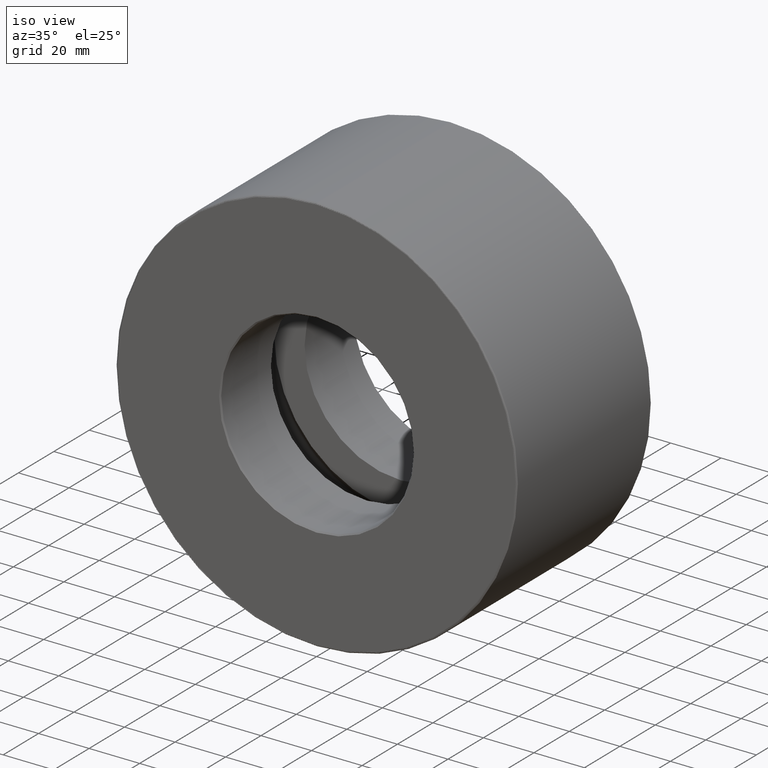
[diagram: clean part render]
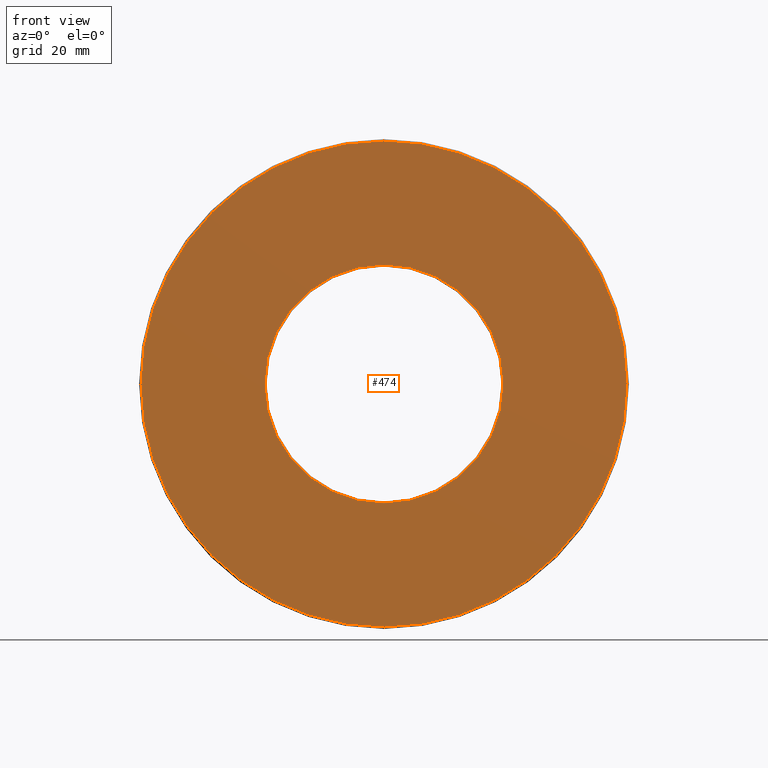
[diagram: tour spotlight — one face highlighted and labeled with its STEP entity id]
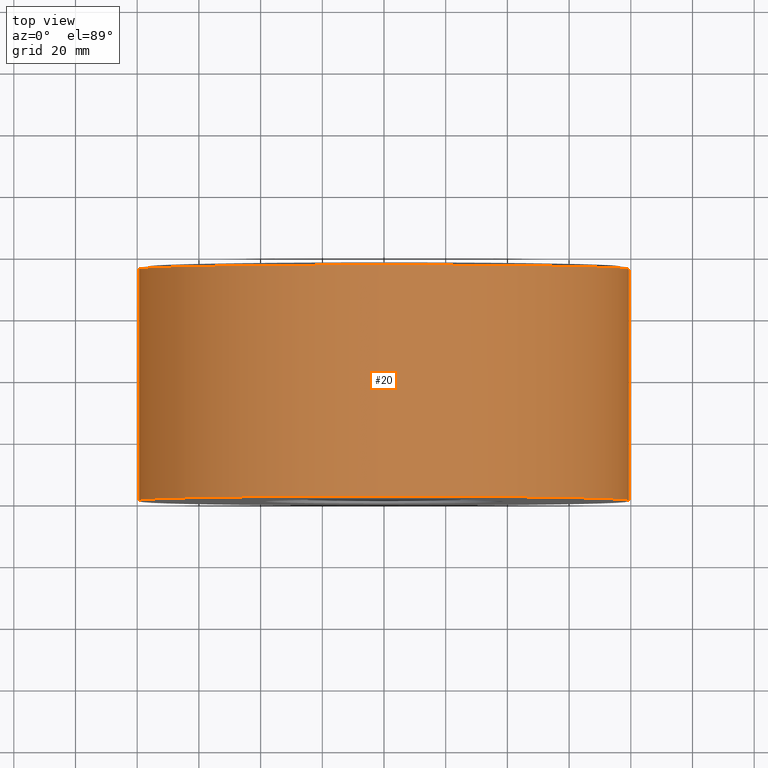
[diagram: tour spotlight — one face highlighted and labeled with its STEP entity id]
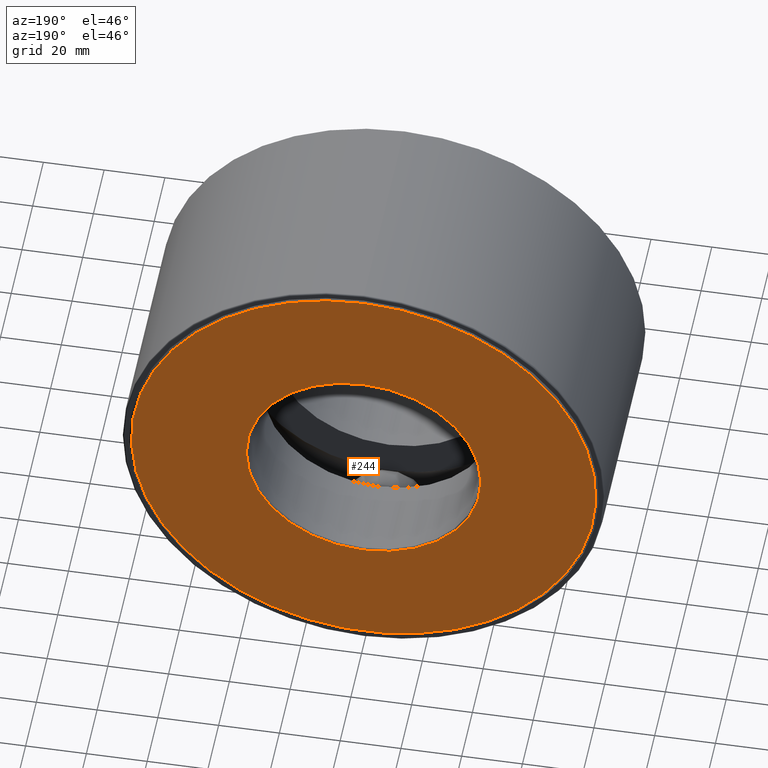
[diagram: tour spotlight — one face highlighted and labeled with its STEP entity id]
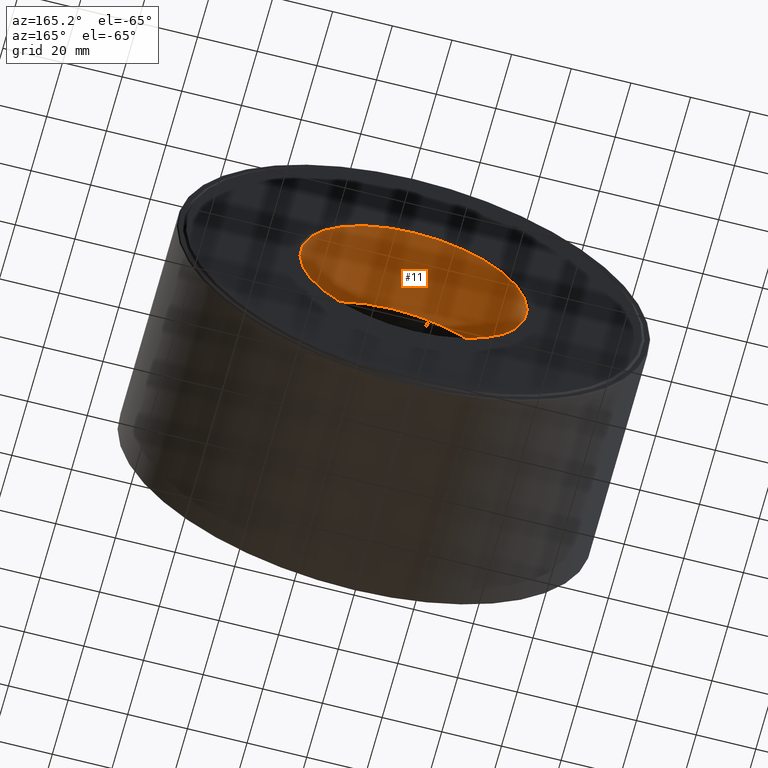
[diagram: tour spotlight — one face highlighted and labeled with its STEP entity id]
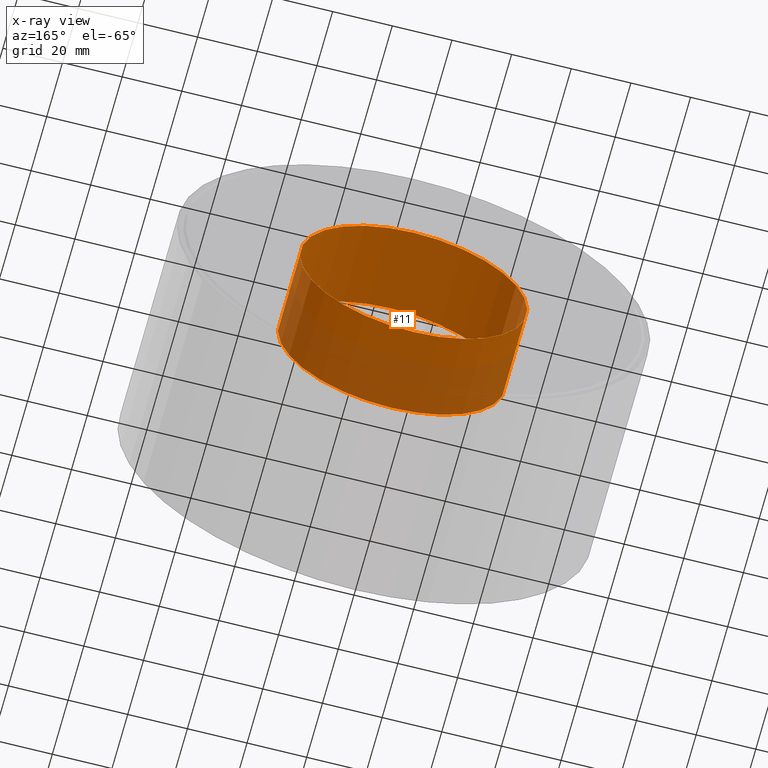
[diagram: x-ray of the same camera — body ghosted, this tour face saturated]
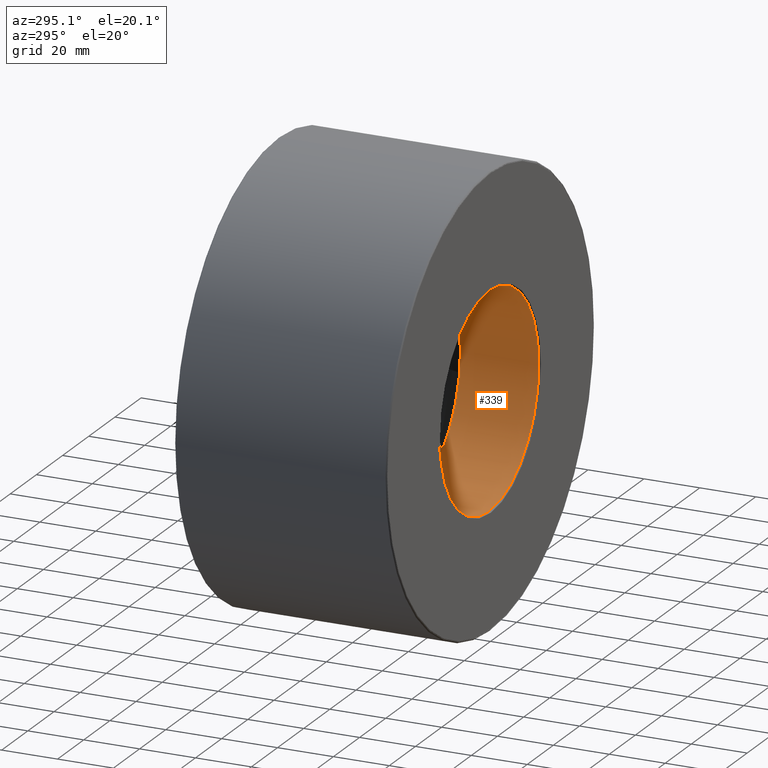
[diagram: tour spotlight — one face highlighted and labeled with its STEP entity id]
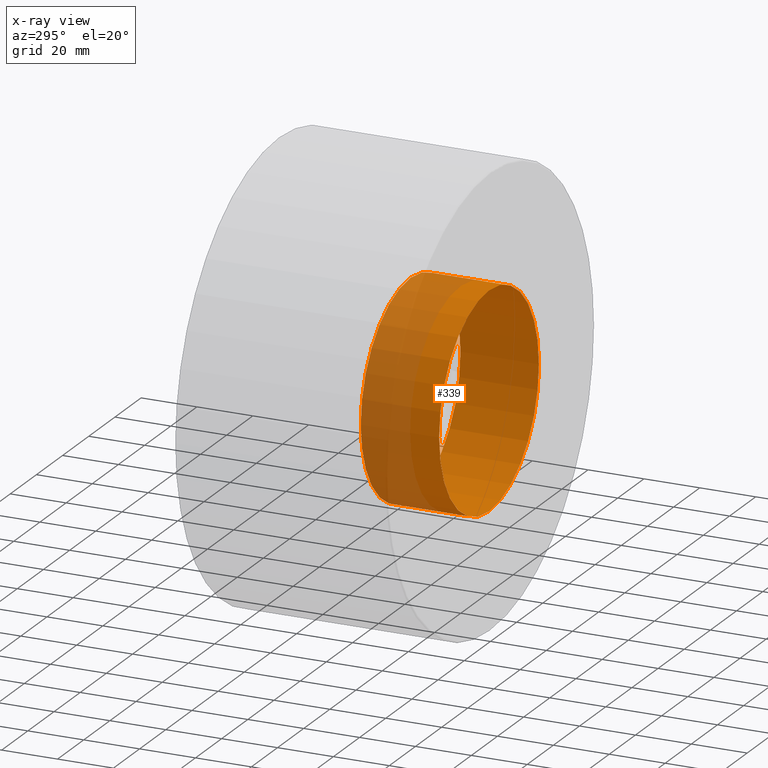
[diagram: x-ray of the same camera — body ghosted, this tour face saturated]
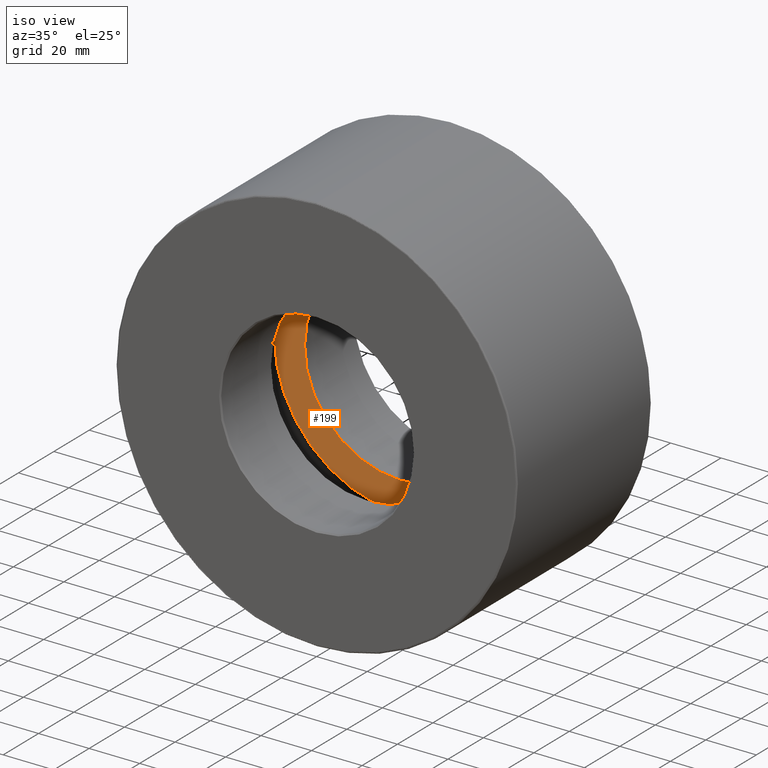
[diagram: tour spotlight — one face highlighted and labeled with its STEP entity id]
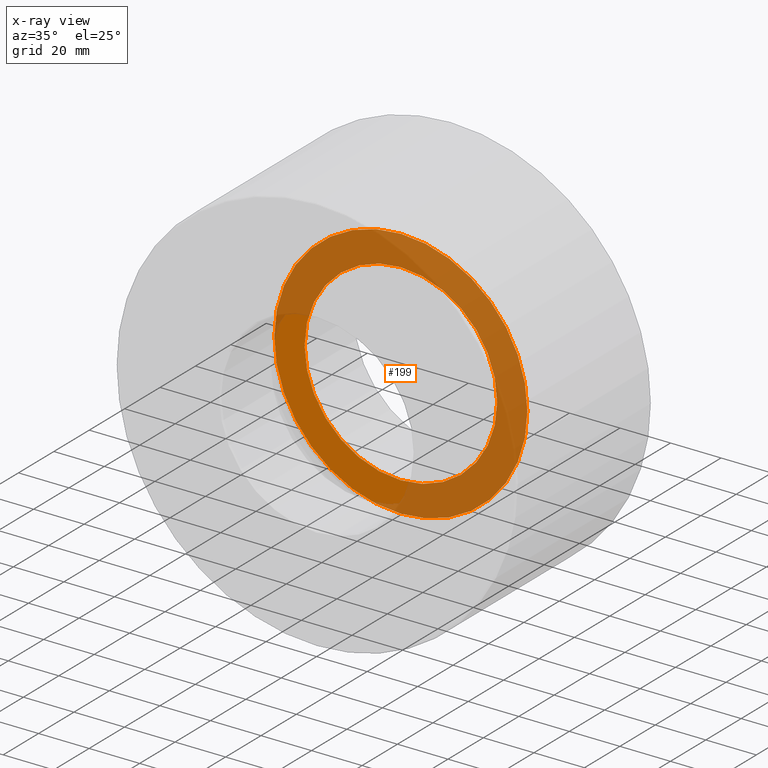
[diagram: x-ray of the same camera — body ghosted, this tour face saturated]
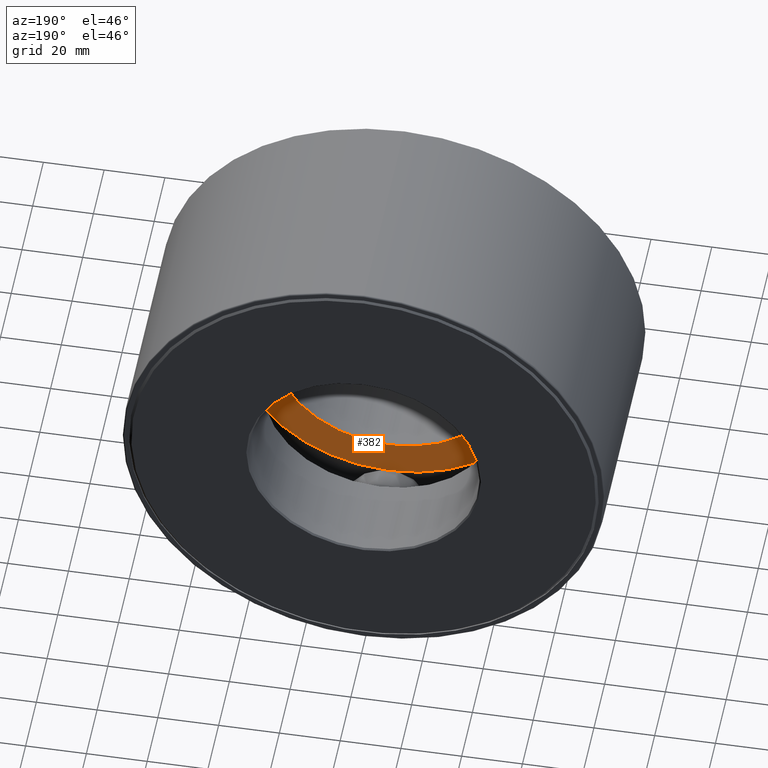
[diagram: tour spotlight — one face highlighted and labeled with its STEP entity id]
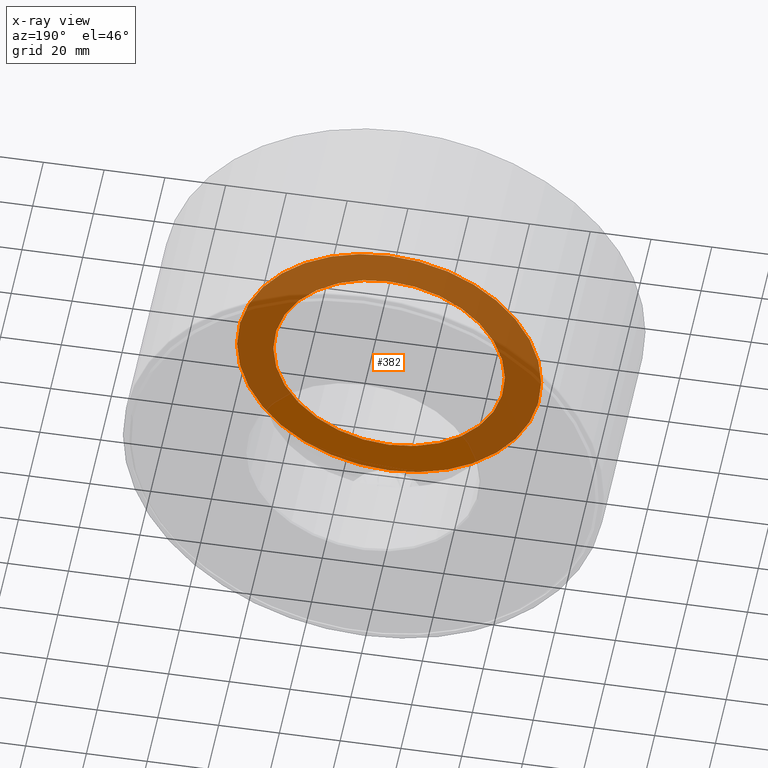
[diagram: x-ray of the same camera — body ghosted, this tour face saturated]
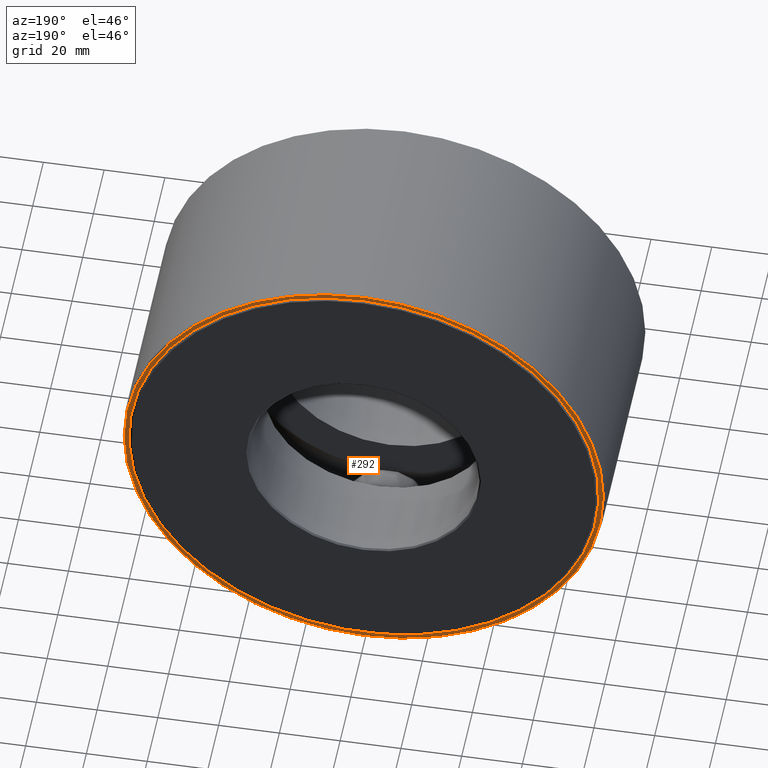
[diagram: tour spotlight — one face highlighted and labeled with its STEP entity id]
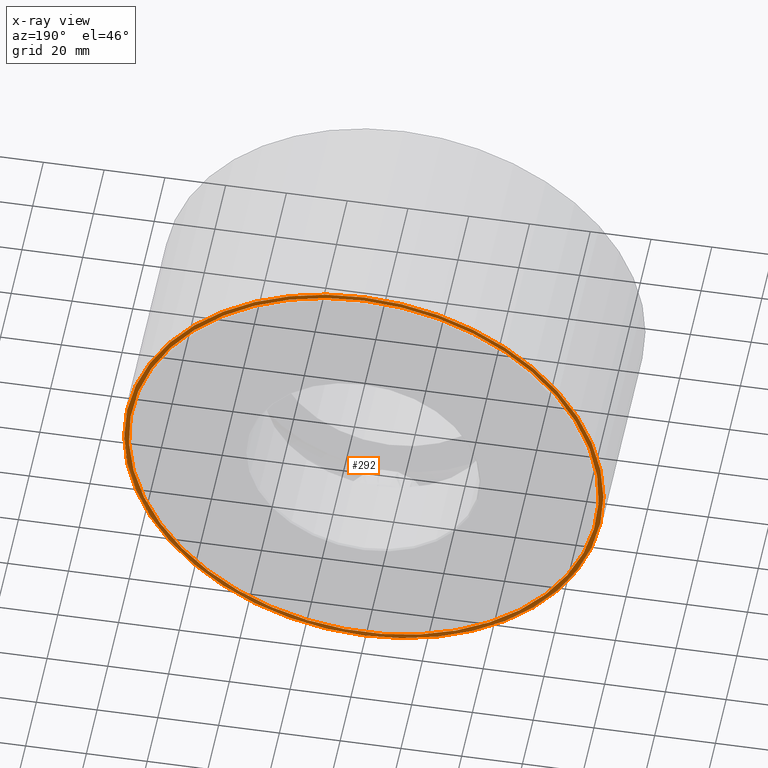
[diagram: x-ray of the same camera — body ghosted, this tour face saturated]
A machine part: a face-by-face anatomy tour. The part has 28 B-rep faces; the first image is the clean iso view, then the 8 largest visible faces are spotlighted one at a time (largest first), each with its STEP entity span.

Face 1 — front view, entity #474. In plain terms, the highlighted planar face has unit normal (-0, 1, 0).
Definition (entity closure, byte-faithful):
#31 = CIRCLE ( 'NONE', #390, 1.520000000000000200 ) ;
#33 = DIRECTION ( 'NONE',  ( -0.0000000000000000000, 1.000000000000000000, -0.0000000000000000000 ) ) ;
#38 = DIRECTION ( 'NONE',  ( 0.0000000000000000000, 0.0000000000000000000, 1.000000000000000000 ) ) ;
#84 = DIRECTION ( 'NONE',  ( -0.0000000000000000000, 1.000000000000000000, 0.0000000000000000000 ) ) ;
#117 = CIRCLE ( 'NONE', #459, 3.100000000000000100 ) ;
#149 = VERTEX_POINT ( 'NONE', #316 ) ;
#151 = EDGE_LOOP ( 'NONE', ( #349 ) ) ;
#163 = DIRECTION ( 'NONE',  ( 0.0000000000000000000, 0.0000000000000000000, 1.000000000000000000 ) ) ;
#228 = FACE_OUTER_BOUND ( 'NONE', #151, .T. ) ;
#235 = ORIENTED_EDGE ( 'NONE', *, *, #363, .T. ) ;
#260 = FACE_BOUND ( 'NONE', #329, .T. ) ;
#264 = PLANE ( 'NONE',  #573 ) ;
#302 = CARTESIAN_POINT ( 'NONE',  ( 0.0000000000000000000, 0.0000000000000000000, 0.0000000000000000000 ) ) ;
#307 = CARTESIAN_POINT ( 'NONE',  ( 0.0000000000000000000, -2.433052119357234300E-016, 0.0000000000000000000 ) ) ;
#316 = CARTESIAN_POINT ( 'NONE',  ( 0.0000000000000000000, 0.0000000000000000000, 1.520000000000000200 ) ) ;
#329 = EDGE_LOOP ( 'NONE', ( #235 ) ) ;
#349 = ORIENTED_EDGE ( 'NONE', *, *, #432, .F. ) ;
#350 = DIRECTION ( 'NONE',  ( 0.0000000000000000000, 0.0000000000000000000, 1.000000000000000000 ) ) ;
#363 = EDGE_CURVE ( 'NONE', #149, #149, #31, .T. ) ;
#390 = AXIS2_PLACEMENT_3D ( 'NONE', #302, #33, #350 ) ;
#432 = EDGE_CURVE ( 'NONE', #605, #605, #117, .T. ) ;
#459 = AXIS2_PLACEMENT_3D ( 'NONE', #307, #601, #38 ) ;
#462 = CARTESIAN_POINT ( 'NONE',  ( 0.0000000000000000000, -2.433052119357234300E-016, 3.100000000000000100 ) ) ;
#474 = ADVANCED_FACE ( 'NONE', ( #228, #260 ), #264, .F. ) ;
#502 = CARTESIAN_POINT ( 'NONE',  ( -3.604393837355100200E-032, -1.216526059678617200E-016, 0.0000000000000000000 ) ) ;
#573 = AXIS2_PLACEMENT_3D ( 'NONE', #502, #84, #163 ) ;
#601 = DIRECTION ( 'NONE',  ( -0.0000000000000000000, 1.000000000000000000, -0.0000000000000000000 ) ) ;
#605 = VERTEX_POINT ( 'NONE', #462 ) ;

Face 2 — top view, entity #20. In plain terms, the highlighted cylindrical surface (bore or boss wall) has radius 79.375 mm, axis along (-0, 1, -0).
Definition (entity closure, byte-faithful):
#12 = VERTEX_POINT ( 'NONE', #409 ) ;
#20 = ADVANCED_FACE ( 'NONE', ( #551, #588 ), #345, .T. ) ;
#45 = CIRCLE ( 'NONE', #602, 3.125000000000000000 ) ;
#55 = CARTESIAN_POINT ( 'NONE',  ( 0.0000000000000000000, 0.0000000000000000000, 0.0000000000000000000 ) ) ;
#102 = CIRCLE ( 'NONE', #498, 3.125000000000000000 ) ;
#132 = EDGE_CURVE ( 'NONE', #12, #12, #45, .T. ) ;
#145 = DIRECTION ( 'NONE',  ( 0.0000000000000000000, 0.0000000000000000000, 1.000000000000000000 ) ) ;
#153 = DIRECTION ( 'NONE',  ( 0.0000000000000000000, 0.0000000000000000000, 1.000000000000000000 ) ) ;
#213 = ORIENTED_EDGE ( 'NONE', *, *, #132, .T. ) ;
#304 = EDGE_CURVE ( 'NONE', #560, #560, #102, .T. ) ;
#308 = EDGE_LOOP ( 'NONE', ( #507 ) ) ;
#330 = DIRECTION ( 'NONE',  ( -0.0000000000000000000, 1.000000000000000000, -0.0000000000000000000 ) ) ;
#331 = AXIS2_PLACEMENT_3D ( 'NONE', #55, #330, #145 ) ;
#338 = DIRECTION ( 'NONE',  ( -0.0000000000000000000, 1.000000000000000000, -0.0000000000000000000 ) ) ;
#345 = CYLINDRICAL_SURFACE ( 'NONE', #331, 3.125000000000000000 ) ;
#392 = DIRECTION ( 'NONE',  ( -0.0000000000000000000, 1.000000000000000000, -0.0000000000000000000 ) ) ;
#409 = CARTESIAN_POINT ( 'NONE',  ( 0.0000000000000000000, 0.01499999999999997700, 3.125000000000000000 ) ) ;
#443 = CARTESIAN_POINT ( 'NONE',  ( 0.0000000000000000000, 2.965000000000000700, 0.0000000000000000000 ) ) ;
#458 = CARTESIAN_POINT ( 'NONE',  ( 0.0000000000000000000, 2.965000000000000700, 3.125000000000000000 ) ) ;
#498 = AXIS2_PLACEMENT_3D ( 'NONE', #443, #392, #542 ) ;
#507 = ORIENTED_EDGE ( 'NONE', *, *, #304, .F. ) ;
#518 = EDGE_LOOP ( 'NONE', ( #213 ) ) ;
#535 = CARTESIAN_POINT ( 'NONE',  ( 0.0000000000000000000, 0.01499999999999997700, 0.0000000000000000000 ) ) ;
#542 = DIRECTION ( 'NONE',  ( 0.0000000000000000000, 0.0000000000000000000, 1.000000000000000000 ) ) ;
#551 = FACE_OUTER_BOUND ( 'NONE', #308, .T. ) ;
#560 = VERTEX_POINT ( 'NONE', #458 ) ;
#588 = FACE_OUTER_BOUND ( 'NONE', #518, .T. ) ;
#602 = AXIS2_PLACEMENT_3D ( 'NONE', #535, #338, #153 ) ;

Face 3 — auxiliary view, entity #244. In plain terms, the highlighted planar face has unit normal (-0, 1, 0).
Definition (entity closure, byte-faithful):
#7 = VERTEX_POINT ( 'NONE', #51 ) ;
#10 = CARTESIAN_POINT ( 'NONE',  ( 0.0000000000000000000, 3.000000000000000400, 0.0000000000000000000 ) ) ;
#43 = VERTEX_POINT ( 'NONE', #171 ) ;
#51 = CARTESIAN_POINT ( 'NONE',  ( 0.0000000000000000000, 3.000000000000000400, 3.009999999999999800 ) ) ;
#80 = DIRECTION ( 'NONE',  ( 0.0000000000000000000, 0.0000000000000000000, 1.000000000000000000 ) ) ;
#90 = AXIS2_PLACEMENT_3D ( 'NONE', #10, #431, #548 ) ;
#104 = EDGE_LOOP ( 'NONE', ( #515 ) ) ;
#137 = EDGE_LOOP ( 'NONE', ( #274 ) ) ;
#171 = CARTESIAN_POINT ( 'NONE',  ( 0.0000000000000000000, 3.000000000000000400, 1.520000000000000700 ) ) ;
#209 = DIRECTION ( 'NONE',  ( -0.0000000000000000000, 1.000000000000000000, -0.0000000000000000000 ) ) ;
#211 = FACE_BOUND ( 'NONE', #104, .T. ) ;
#216 = CARTESIAN_POINT ( 'NONE',  ( 0.0000000000000000000, 3.000000000000000400, 0.0000000000000000000 ) ) ;
#243 = PLANE ( 'NONE',  #90 ) ;
#244 = ADVANCED_FACE ( 'NONE', ( #461, #211 ), #243, .T. ) ;
#274 = ORIENTED_EDGE ( 'NONE', *, *, #323, .T. ) ;
#323 = EDGE_CURVE ( 'NONE', #7, #7, #447, .T. ) ;
#377 = AXIS2_PLACEMENT_3D ( 'NONE', #216, #446, #80 ) ;
#393 = DIRECTION ( 'NONE',  ( 0.0000000000000000000, 0.0000000000000000000, 1.000000000000000000 ) ) ;
#431 = DIRECTION ( 'NONE',  ( -0.0000000000000000000, 1.000000000000000000, 0.0000000000000000000 ) ) ;
#444 = EDGE_CURVE ( 'NONE', #43, #43, #599, .T. ) ;
#446 = DIRECTION ( 'NONE',  ( -0.0000000000000000000, 1.000000000000000000, -0.0000000000000000000 ) ) ;
#447 = CIRCLE ( 'NONE', #596, 3.009999999999999800 ) ;
#461 = FACE_OUTER_BOUND ( 'NONE', #137, .T. ) ;
#515 = ORIENTED_EDGE ( 'NONE', *, *, #444, .F. ) ;
#545 = CARTESIAN_POINT ( 'NONE',  ( 0.0000000000000000000, 3.000000000000000400, 0.0000000000000000000 ) ) ;
#548 = DIRECTION ( 'NONE',  ( 0.0000000000000000000, 0.0000000000000000000, 1.000000000000000000 ) ) ;
#596 = AXIS2_PLACEMENT_3D ( 'NONE', #545, #209, #393 ) ;
#599 = CIRCLE ( 'NONE', #377, 1.520000000000000700 ) ;

Face 4 — auxiliary view, entity #11. An x-ray twin of the same camera follows (body ghosted, this face saturated) — the face is partly hidden behind the body. In plain terms, the highlighted cylindrical surface (bore or boss wall) has radius 38.1 mm, axis along (-0, 1, -0).
Definition (entity closure, byte-faithful):
#1 = DIRECTION ( 'NONE',  ( -0.0000000000000000000, 1.000000000000000000, -0.0000000000000000000 ) ) ;
#11 = ADVANCED_FACE ( 'NONE', ( #369, #408 ), #186, .F. ) ;
#32 = ORIENTED_EDGE ( 'NONE', *, *, #477, .F. ) ;
#58 = DIRECTION ( 'NONE',  ( 0.0000000000000000000, 0.0000000000000000000, 1.000000000000000000 ) ) ;
#82 = AXIS2_PLACEMENT_3D ( 'NONE', #500, #505, #218 ) ;
#131 = CARTESIAN_POINT ( 'NONE',  ( 0.0000000000000000000, 1.874999999999999800, 1.500000000000000400 ) ) ;
#134 = CIRCLE ( 'NONE', #272, 1.500000000000000400 ) ;
#186 = CYLINDRICAL_SURFACE ( 'NONE', #565, 1.500000000000000400 ) ;
#218 = DIRECTION ( 'NONE',  ( 0.0000000000000000000, 0.0000000000000000000, 1.000000000000000000 ) ) ;
#225 = CARTESIAN_POINT ( 'NONE',  ( 0.0000000000000000000, 2.979999999999999500, 1.500000000000000400 ) ) ;
#227 = CARTESIAN_POINT ( 'NONE',  ( 0.0000000000000000000, 2.979999999999999500, 0.0000000000000000000 ) ) ;
#236 = DIRECTION ( 'NONE',  ( 0.0000000000000000000, 0.0000000000000000000, 1.000000000000000000 ) ) ;
#241 = EDGE_LOOP ( 'NONE', ( #32 ) ) ;
#242 = CARTESIAN_POINT ( 'NONE',  ( 0.0000000000000000000, 0.0000000000000000000, 0.0000000000000000000 ) ) ;
#270 = VERTEX_POINT ( 'NONE', #131 ) ;
#272 = AXIS2_PLACEMENT_3D ( 'NONE', #227, #1, #236 ) ;
#341 = VERTEX_POINT ( 'NONE', #225 ) ;
#369 = FACE_OUTER_BOUND ( 'NONE', #579, .T. ) ;
#394 = CIRCLE ( 'NONE', #82, 1.500000000000000400 ) ;
#408 = FACE_OUTER_BOUND ( 'NONE', #241, .T. ) ;
#477 = EDGE_CURVE ( 'NONE', #270, #270, #394, .T. ) ;
#500 = CARTESIAN_POINT ( 'NONE',  ( 0.0000000000000000000, 1.874999999999999800, 0.0000000000000000000 ) ) ;
#505 = DIRECTION ( 'NONE',  ( -0.0000000000000000000, 1.000000000000000000, -0.0000000000000000000 ) ) ;
#514 = EDGE_CURVE ( 'NONE', #341, #341, #134, .T. ) ;
#520 = DIRECTION ( 'NONE',  ( -0.0000000000000000000, 1.000000000000000000, -0.0000000000000000000 ) ) ;
#565 = AXIS2_PLACEMENT_3D ( 'NONE', #242, #520, #58 ) ;
#579 = EDGE_LOOP ( 'NONE', ( #600 ) ) ;
#600 = ORIENTED_EDGE ( 'NONE', *, *, #514, .T. ) ;

Face 5 — auxiliary view, entity #339. An x-ray twin of the same camera follows (body ghosted, this face saturated) — the face is partly hidden behind the body. In plain terms, the highlighted cylindrical surface (bore or boss wall) has radius 38.1 mm, axis along (-0, 1, -0).
Definition (entity closure, byte-faithful):
#28 = DIRECTION ( 'NONE',  ( 0.0000000000000000000, 0.0000000000000000000, 1.000000000000000000 ) ) ;
#29 = CARTESIAN_POINT ( 'NONE',  ( 0.0000000000000000000, 0.0000000000000000000, 0.0000000000000000000 ) ) ;
#65 = DIRECTION ( 'NONE',  ( 0.0000000000000000000, 0.0000000000000000000, 1.000000000000000000 ) ) ;
#74 = EDGE_LOOP ( 'NONE', ( #135 ) ) ;
#87 = FACE_OUTER_BOUND ( 'NONE', #256, .T. ) ;
#105 = CARTESIAN_POINT ( 'NONE',  ( 0.0000000000000000000, 1.125000000000000700, 0.0000000000000000000 ) ) ;
#106 = EDGE_CURVE ( 'NONE', #401, #401, #421, .T. ) ;
#135 = ORIENTED_EDGE ( 'NONE', *, *, #106, .T. ) ;
#167 = EDGE_CURVE ( 'NONE', #360, #360, #395, .T. ) ;
#250 = ORIENTED_EDGE ( 'NONE', *, *, #167, .F. ) ;
#254 = CARTESIAN_POINT ( 'NONE',  ( 0.0000000000000000000, 0.02000000000000087800, 0.0000000000000000000 ) ) ;
#256 = EDGE_LOOP ( 'NONE', ( #250 ) ) ;
#257 = AXIS2_PLACEMENT_3D ( 'NONE', #254, #575, #65 ) ;
#280 = CARTESIAN_POINT ( 'NONE',  ( 0.0000000000000000000, 1.125000000000000700, 1.500000000000000400 ) ) ;
#291 = DIRECTION ( 'NONE',  ( 0.0000000000000000000, 0.0000000000000000000, 1.000000000000000000 ) ) ;
#311 = AXIS2_PLACEMENT_3D ( 'NONE', #29, #342, #28 ) ;
#339 = ADVANCED_FACE ( 'NONE', ( #87, #456 ), #478, .F. ) ;
#342 = DIRECTION ( 'NONE',  ( -0.0000000000000000000, 1.000000000000000000, -0.0000000000000000000 ) ) ;
#360 = VERTEX_POINT ( 'NONE', #562 ) ;
#385 = DIRECTION ( 'NONE',  ( -0.0000000000000000000, 1.000000000000000000, -0.0000000000000000000 ) ) ;
#395 = CIRCLE ( 'NONE', #257, 1.500000000000000200 ) ;
#401 = VERTEX_POINT ( 'NONE', #280 ) ;
#421 = CIRCLE ( 'NONE', #472, 1.500000000000000400 ) ;
#456 = FACE_OUTER_BOUND ( 'NONE', #74, .T. ) ;
#472 = AXIS2_PLACEMENT_3D ( 'NONE', #105, #385, #291 ) ;
#478 = CYLINDRICAL_SURFACE ( 'NONE', #311, 1.500000000000000400 ) ;
#562 = CARTESIAN_POINT ( 'NONE',  ( 0.0000000000000000000, 0.02000000000000087800, 1.500000000000000200 ) ) ;
#575 = DIRECTION ( 'NONE',  ( -0.0000000000000000000, 1.000000000000000000, -0.0000000000000000000 ) ) ;

Face 6 — iso view, entity #199. An x-ray twin of the same camera follows (body ghosted, this face saturated) — the face is partly hidden behind the body. In plain terms, the highlighted planar face has unit normal (0, -1, 0).
Definition (entity closure, byte-faithful):
#8 = AXIS2_PLACEMENT_3D ( 'NONE', #465, #523, #582 ) ;
#15 = DIRECTION ( 'NONE',  ( 0.0000000000000000000, -1.000000000000000000, 0.0000000000000000000 ) ) ;
#39 = EDGE_CURVE ( 'NONE', #351, #351, #122, .T. ) ;
#47 = CARTESIAN_POINT ( 'NONE',  ( 0.0000000000000000000, 1.875000000000000000, 1.970999999999999900 ) ) ;
#82 = AXIS2_PLACEMENT_3D ( 'NONE', #500, #505, #218 ) ;
#122 = CIRCLE ( 'NONE', #8, 1.970999999999999900 ) ;
#131 = CARTESIAN_POINT ( 'NONE',  ( 0.0000000000000000000, 1.874999999999999800, 1.500000000000000400 ) ) ;
#188 = PLANE ( 'NONE',  #357 ) ;
#195 = CARTESIAN_POINT ( 'NONE',  ( 1.087519105758067300E-015, 1.875000000000000000, 0.0000000000000000000 ) ) ;
#199 = ADVANCED_FACE ( 'NONE', ( #271, #230 ), #188, .T. ) ;
#218 = DIRECTION ( 'NONE',  ( 0.0000000000000000000, 0.0000000000000000000, 1.000000000000000000 ) ) ;
#230 = FACE_OUTER_BOUND ( 'NONE', #590, .T. ) ;
#270 = VERTEX_POINT ( 'NONE', #131 ) ;
#271 = FACE_BOUND ( 'NONE', #318, .T. ) ;
#318 = EDGE_LOOP ( 'NONE', ( #546 ) ) ;
#332 = DIRECTION ( 'NONE',  ( 0.0000000000000000000, -0.0000000000000000000, -1.000000000000000000 ) ) ;
#346 = ORIENTED_EDGE ( 'NONE', *, *, #39, .F. ) ;
#351 = VERTEX_POINT ( 'NONE', #47 ) ;
#357 = AXIS2_PLACEMENT_3D ( 'NONE', #195, #15, #332 ) ;
#394 = CIRCLE ( 'NONE', #82, 1.500000000000000400 ) ;
#465 = CARTESIAN_POINT ( 'NONE',  ( 0.0000000000000000000, 1.875000000000000000, 0.0000000000000000000 ) ) ;
#477 = EDGE_CURVE ( 'NONE', #270, #270, #394, .T. ) ;
#500 = CARTESIAN_POINT ( 'NONE',  ( 0.0000000000000000000, 1.874999999999999800, 0.0000000000000000000 ) ) ;
#505 = DIRECTION ( 'NONE',  ( -0.0000000000000000000, 1.000000000000000000, -0.0000000000000000000 ) ) ;
#523 = DIRECTION ( 'NONE',  ( -0.0000000000000000000, 1.000000000000000000, -0.0000000000000000000 ) ) ;
#546 = ORIENTED_EDGE ( 'NONE', *, *, #477, .T. ) ;
#582 = DIRECTION ( 'NONE',  ( 0.0000000000000000000, 0.0000000000000000000, 1.000000000000000000 ) ) ;
#590 = EDGE_LOOP ( 'NONE', ( #346 ) ) ;

Face 7 — auxiliary view, entity #382. An x-ray twin of the same camera follows (body ghosted, this face saturated) — the face is partly hidden behind the body. In plain terms, the highlighted planar face has unit normal (0, -1, 0).
Definition (entity closure, byte-faithful):
#16 = EDGE_LOOP ( 'NONE', ( #534 ) ) ;
#53 = AXIS2_PLACEMENT_3D ( 'NONE', #166, #124, #508 ) ;
#72 = FACE_OUTER_BOUND ( 'NONE', #16, .T. ) ;
#105 = CARTESIAN_POINT ( 'NONE',  ( 0.0000000000000000000, 1.125000000000000700, 0.0000000000000000000 ) ) ;
#106 = EDGE_CURVE ( 'NONE', #401, #401, #421, .T. ) ;
#120 = DIRECTION ( 'NONE',  ( 0.0000000000000000000, -1.000000000000000000, 0.0000000000000000000 ) ) ;
#121 = CARTESIAN_POINT ( 'NONE',  ( -9.787671951822628000E-016, 1.125000000000000400, 0.0000000000000000000 ) ) ;
#124 = DIRECTION ( 'NONE',  ( -0.0000000000000000000, 1.000000000000000000, -0.0000000000000000000 ) ) ;
#166 = CARTESIAN_POINT ( 'NONE',  ( 0.0000000000000000000, 1.125000000000000200, 0.0000000000000000000 ) ) ;
#207 = PLANE ( 'NONE',  #488 ) ;
#246 = VERTEX_POINT ( 'NONE', #317 ) ;
#280 = CARTESIAN_POINT ( 'NONE',  ( 0.0000000000000000000, 1.125000000000000700, 1.500000000000000400 ) ) ;
#291 = DIRECTION ( 'NONE',  ( 0.0000000000000000000, 0.0000000000000000000, 1.000000000000000000 ) ) ;
#317 = CARTESIAN_POINT ( 'NONE',  ( 0.0000000000000000000, 1.125000000000000200, 1.970999999999999900 ) ) ;
#382 = ADVANCED_FACE ( 'NONE', ( #416, #72 ), #207, .F. ) ;
#384 = ORIENTED_EDGE ( 'NONE', *, *, #106, .F. ) ;
#385 = DIRECTION ( 'NONE',  ( -0.0000000000000000000, 1.000000000000000000, -0.0000000000000000000 ) ) ;
#401 = VERTEX_POINT ( 'NONE', #280 ) ;
#407 = CIRCLE ( 'NONE', #53, 1.970999999999999900 ) ;
#411 = EDGE_CURVE ( 'NONE', #246, #246, #407, .T. ) ;
#416 = FACE_BOUND ( 'NONE', #424, .T. ) ;
#421 = CIRCLE ( 'NONE', #472, 1.500000000000000400 ) ;
#424 = EDGE_LOOP ( 'NONE', ( #384 ) ) ;
#440 = DIRECTION ( 'NONE',  ( 0.0000000000000000000, -0.0000000000000000000, -1.000000000000000000 ) ) ;
#472 = AXIS2_PLACEMENT_3D ( 'NONE', #105, #385, #291 ) ;
#488 = AXIS2_PLACEMENT_3D ( 'NONE', #121, #120, #440 ) ;
#508 = DIRECTION ( 'NONE',  ( 0.0000000000000000000, 0.0000000000000000000, 1.000000000000000000 ) ) ;
#534 = ORIENTED_EDGE ( 'NONE', *, *, #411, .T. ) ;

Face 8 — auxiliary view, entity #292. An x-ray twin of the same camera follows (body ghosted, this face saturated) — the face is partly hidden behind the body. In plain terms, the highlighted planar face has unit normal (0, -1, 0).
Definition (entity closure, byte-faithful):
#50 = DIRECTION ( 'NONE',  ( -0.0000000000000000000, 1.000000000000000000, -0.0000000000000000000 ) ) ;
#54 = CIRCLE ( 'NONE', #549, 3.105000000000000400 ) ;
#69 = PLANE ( 'NONE',  #509 ) ;
#75 = DIRECTION ( 'NONE',  ( 0.0000000000000000000, -1.000000000000000000, 0.0000000000000000000 ) ) ;
#79 = FACE_BOUND ( 'NONE', #321, .T. ) ;
#89 = ORIENTED_EDGE ( 'NONE', *, *, #326, .T. ) ;
#91 = CARTESIAN_POINT ( 'NONE',  ( 0.0000000000000000000, 2.984999999999999900, 3.105000000000000400 ) ) ;
#148 = AXIS2_PLACEMENT_3D ( 'NONE', #179, #50, #371 ) ;
#150 = EDGE_LOOP ( 'NONE', ( #89 ) ) ;
#157 = DIRECTION ( 'NONE',  ( 0.0000000000000000000, 0.0000000000000000000, 1.000000000000000000 ) ) ;
#179 = CARTESIAN_POINT ( 'NONE',  ( 0.0000000000000000000, 2.984999999999999900, 0.0000000000000000000 ) ) ;
#198 = DIRECTION ( 'NONE',  ( -0.0000000000000000000, 1.000000000000000000, -0.0000000000000000000 ) ) ;
#292 = ADVANCED_FACE ( 'NONE', ( #79, #566 ), #69, .F. ) ;
#321 = EDGE_LOOP ( 'NONE', ( #552 ) ) ;
#326 = EDGE_CURVE ( 'NONE', #550, #550, #54, .T. ) ;
#344 = CIRCLE ( 'NONE', #148, 3.044999999999999900 ) ;
#371 = DIRECTION ( 'NONE',  ( 0.0000000000000000000, 0.0000000000000000000, 1.000000000000000000 ) ) ;
#433 = CARTESIAN_POINT ( 'NONE',  ( 0.0000000000000000000, 2.984999999999999900, 0.0000000000000000000 ) ) ;
#487 = CARTESIAN_POINT ( 'NONE',  ( 0.0000000000000000000, 2.984999999999999900, 0.0000000000000000000 ) ) ;
#493 = EDGE_CURVE ( 'NONE', #593, #593, #344, .T. ) ;
#509 = AXIS2_PLACEMENT_3D ( 'NONE', #433, #75, #591 ) ;
#549 = AXIS2_PLACEMENT_3D ( 'NONE', #487, #198, #157 ) ;
#550 = VERTEX_POINT ( 'NONE', #91 ) ;
#552 = ORIENTED_EDGE ( 'NONE', *, *, #493, .F. ) ;
#566 = FACE_OUTER_BOUND ( 'NONE', #150, .T. ) ;
#591 = DIRECTION ( 'NONE',  ( 0.0000000000000000000, -0.0000000000000000000, -1.000000000000000000 ) ) ;
#593 = VERTEX_POINT ( 'NONE', #603 ) ;
#603 = CARTESIAN_POINT ( 'NONE',  ( 0.0000000000000000000, 2.984999999999999900, 3.044999999999999900 ) ) ;